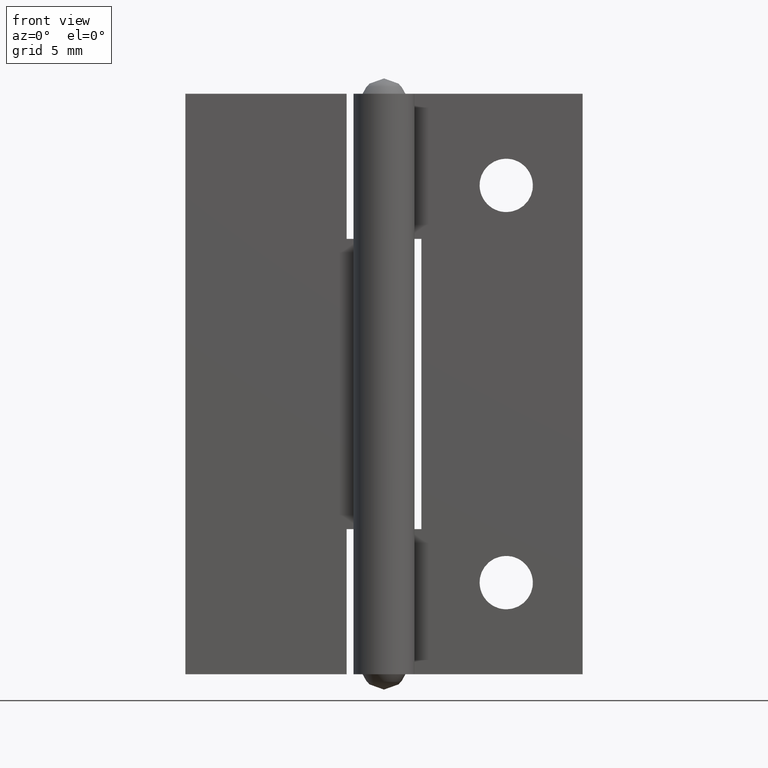
[diagram: clean part render]
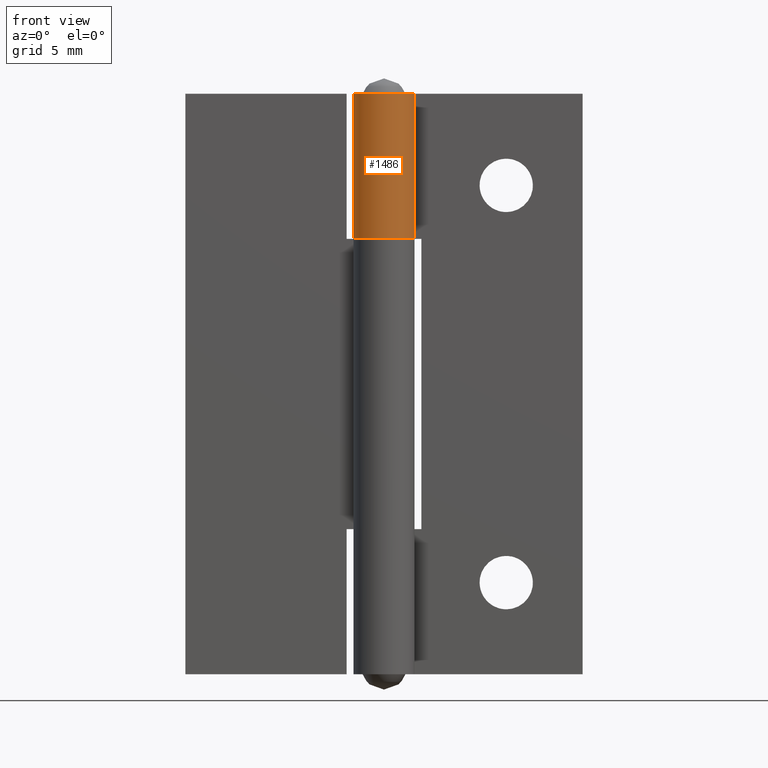
[diagram: same view with one face highlighted and labeled with its STEP entity id]
A machine part, front view. The second image highlights one B-rep face of the part: STEP entity #1486.
In plain terms, the highlighted face is a freeform B-spline surface patch.
Its self-contained STEP definition (entity closure, byte-faithful):
#1039=CARTESIAN_POINT('',(-0.000000034906578,2.0,28.500000000000000));
#1040=VERTEX_POINT('',#1039);
#1078=CARTESIAN_POINT('',(1.636306079486140,1.150001000000000,28.500000000000000));
#1079=VERTEX_POINT('',#1078);
#1085=CARTESIAN_POINT('',(-0.000000034906578,2.0,28.500000000000000));
#1086=CARTESIAN_POINT('',(-0.138662599789043,2.000009071532254,28.500000000000000));
#1087=CARTESIAN_POINT('',(-0.457623820378573,1.966744788136761,28.500000000000028));
#1088=CARTESIAN_POINT('',(-0.866118445695828,1.820755299654439,28.499999999999989));
#1089=CARTESIAN_POINT('',(-1.260712286271368,1.572488074936260,28.499999999999979));
#1090=CARTESIAN_POINT('',(-1.545474919250549,1.293651750988551,28.500000000000060));
#1091=CARTESIAN_POINT('',(-1.790544170826934,0.921842037181034,28.499999999999929));
#1092=CARTESIAN_POINT('',(-1.932979946560860,0.565166024059925,28.500000000000298));
#1093=CARTESIAN_POINT('',(-2.001619589783685,0.181630957281309,28.499999999999091));
#1094=CARTESIAN_POINT('',(-2.003511127313871,-0.159431725649105,28.500000000002320));
#1095=CARTESIAN_POINT('',(-1.947155879620379,-0.495671646900028,28.499999999996529));
#1096=CARTESIAN_POINT('',(-1.840417730498732,-0.804774894624429,28.500000000000540));
#1097=CARTESIAN_POINT('',(-1.662475058039428,-1.135510809175720,28.500000000000139));
#1098=CARTESIAN_POINT('',(-1.430970469922418,-1.415269198162874,28.499999999999901));
#1099=CARTESIAN_POINT('',(-1.108489837890586,-1.679840511352166,28.500000000000028));
#1100=CARTESIAN_POINT('',(-0.745891886063316,-1.875479625690522,28.499999999999989));
#1101=CARTESIAN_POINT('',(-0.334543653907523,-1.985172164224648,28.500000000000011));
#1102=CARTESIAN_POINT('',(0.061259758865082,-2.010167398837257,28.499999999999961));
#1103=CARTESIAN_POINT('',(0.441769884819061,-1.964715102119399,28.500000000000451));
#1104=CARTESIAN_POINT('',(0.805510004894480,-1.843465370229342,28.499999999998469));
#1105=CARTESIAN_POINT('',(1.097141598066139,-1.680722744495974,28.500000000003439));
#1106=CARTESIAN_POINT('',(1.361688231245626,-1.477726647497505,28.499999999998831));
#1107=CARTESIAN_POINT('',(1.599242862038792,-1.222661001553729,28.500000000000799));
#1108=CARTESIAN_POINT('',(1.796510644998546,-0.902499314880212,28.499999999999609));
#1109=CARTESIAN_POINT('',(1.916408596946140,-0.598260482099542,28.500000000000082));
#1110=CARTESIAN_POINT('',(1.995370362687566,-0.252741753666285,28.500000000000011));
#1111=CARTESIAN_POINT('',(2.013261787909481,0.165627838020267,28.500000000000011));
#1112=CARTESIAN_POINT('',(1.909520484724008,0.672562779634810,28.499999999999979));
#1113=CARTESIAN_POINT('',(1.744013222588146,0.996874815963740,28.500000000000011));
#1114=CARTESIAN_POINT('',(1.636306079486140,1.150001000000000,28.500000000000000));
#1115=B_SPLINE_CURVE_WITH_KNOTS('',3,(#1085,#1086,#1087,#1088,#1089,#1090,#1091,#1092,#1093,#1094,#1095,#1096,#1097,#1098,#1099,#1100,#1101,#1102,#1103,#1104,#1105,#1106,#1107,#1108,#1109,#1110,#1111,#1112,#1113,#1114),.UNSPECIFIED.,.F.,.U.,(4,1,1,1,1,1,1,1,1,1,1,1,1,1,1,1,1,1,1,1,1,1,1,1,1,1,1,4),(0.000000210222714,0.415998250467974,0.956837923065237,1.289653514315553,1.809678284180539,2.142491950208932,2.620925288320601,2.953701236985336,3.307326494626858,3.640145148307610,3.972963243569266,4.284982276041667,4.763407927354322,5.054609055803840,5.533017053833843,5.990643790003437,6.323456821509446,6.718676333246000,7.134697244981644,7.467506912515731,7.717121826852859,8.133113595031739,8.507546876857571,8.840356543166630,9.110768107600203,9.568396167602646,10.088420916170680,10.650035476699960),.UNSPECIFIED.);
#1116=EDGE_CURVE('',#1040,#1079,#1115,.T.);
#1220=CARTESIAN_POINT('',(-0.000000034906578,2.0,38.0));
#1221=VERTEX_POINT('',#1220);
#1227=CARTESIAN_POINT('',(1.636306079486140,1.150001000000000,38.0));
#1228=VERTEX_POINT('',#1227);
#1229=CARTESIAN_POINT('',(1.636306079486140,1.150001000000000,38.0));
#1230=CARTESIAN_POINT('',(1.744010285888513,0.996873530012477,37.999999999999851));
#1231=CARTESIAN_POINT('',(1.868118870912471,0.753640011227109,38.000000000000192));
#1232=CARTESIAN_POINT('',(1.969786669465366,0.385317730863842,37.999999999999822));
#1233=CARTESIAN_POINT('',(2.013641439471758,0.033192026548669,38.000000000000057));
#1234=CARTESIAN_POINT('',(1.980567104560594,-0.384505444103531,38.000000000000028));
#1235=CARTESIAN_POINT('',(1.836862001114487,-0.836525070670545,38.000000000000057));
#1236=CARTESIAN_POINT('',(1.602619877034943,-1.225664157940175,37.999999999999908));
#1237=CARTESIAN_POINT('',(1.325804361515979,-1.510725046084966,38.000000000000092));
#1238=CARTESIAN_POINT('',(1.050357593268280,-1.710931005828051,37.999999999999929));
#1239=CARTESIAN_POINT('',(0.753790421221455,-1.864492968712068,38.000000000000391));
#1240=CARTESIAN_POINT('',(0.393874498979968,-1.974159441917315,38.000000000000327));
#1241=CARTESIAN_POINT('',(0.033300525625114,-2.009637233329302,37.999999999999837));
#1242=CARTESIAN_POINT('',(-0.327228785905870,-1.983097080664199,38.000000000000050));
#1243=CARTESIAN_POINT('',(-0.705756908316438,-1.888454434220585,37.999999999999950));
#1244=CARTESIAN_POINT('',(-1.055543263838064,-1.713612870506321,38.000000000000043));
#1245=CARTESIAN_POINT('',(-1.375094125583939,-1.467696477819422,37.999999999999957));
#1246=CARTESIAN_POINT('',(-1.613075772794542,-1.203307034371731,38.000000000000043));
#1247=CARTESIAN_POINT('',(-1.838659882654495,-0.827451558615733,37.999999999999993));
#1248=CARTESIAN_POINT('',(-1.967115071910584,-0.442502620806842,38.000000000000007));
#1249=CARTESIAN_POINT('',(-2.013892316273424,0.007346773082969,37.999999999999993));
#1250=CARTESIAN_POINT('',(-1.976568259162781,0.382576957826380,38.0));
#1251=CARTESIAN_POINT('',(-1.856567728497319,0.774971962381117,38.000000000000043));
#1252=CARTESIAN_POINT('',(-1.665121996649279,1.139248311035116,38.000000000000007));
#1253=CARTESIAN_POINT('',(-1.377414805226810,1.472088630809970,37.999999999999972));
#1254=CARTESIAN_POINT('',(-1.014042689939117,1.742422158920420,38.000000000000007));
#1255=CARTESIAN_POINT('',(-0.561571860214918,1.945160633847681,38.000000000000007));
#1256=CARTESIAN_POINT('',(-0.201078424475907,2.000093897372937,38.0));
#1257=CARTESIAN_POINT('',(-0.000000034906578,2.0,38.0));
#1258=B_SPLINE_CURVE_WITH_KNOTS('',3,(#1229,#1230,#1231,#1232,#1233,#1234,#1235,#1236,#1237,#1238,#1239,#1240,#1241,#1242,#1243,#1244,#1245,#1246,#1247,#1248,#1249,#1250,#1251,#1252,#1253,#1254,#1255,#1256,#1257),.UNSPECIFIED.,.F.,.U.,(4,1,1,1,1,1,1,1,1,1,1,1,1,1,1,1,1,1,1,1,1,1,1,1,1,1,4),(0.000000210223451,0.561608016460838,0.811228940110574,1.144046337282139,1.622470234139092,2.059297143157179,2.558512482947108,2.974521855135663,3.244917356962839,3.577738229994988,3.972963243569607,4.368183573306946,4.659398887436923,5.054609055804161,5.533017053834152,5.824221892411053,6.261048105387788,6.593868872801720,7.134697244981750,7.467506912515768,7.945942504401968,8.257931962618660,8.694748151425149,9.173174019361724,9.568396167602703,10.046823932830931,10.650035476699941),.UNSPECIFIED.);
#1259=EDGE_CURVE('',#1228,#1221,#1258,.T.);
#1413=CARTESIAN_POINT('',(1.636306079486140,1.150001000000000,38.0));
#1414=CARTESIAN_POINT('',(1.636306079486140,1.150001000000000,28.500000000000000));
#1415=QUASI_UNIFORM_CURVE('',1,(#1413,#1414),.UNSPECIFIED.,.F.,.U.);
#1416=EDGE_CURVE('',#1228,#1079,#1415,.T.);
#1454=CARTESIAN_POINT('',(0.017453036090169,1.999923846128342,38.237499999999997));
#1455=CARTESIAN_POINT('',(0.017453036090169,1.999923846128342,28.256562499999990));
#1456=CARTESIAN_POINT('',(-2.496795823209837,2.021865363516517,38.237500000000004));
#1457=CARTESIAN_POINT('',(-2.496795823209837,2.021865363516517,28.256562500000001));
#1458=CARTESIAN_POINT('',(-1.952592049146443,-0.432879227876207,38.237499999999997));
#1459=CARTESIAN_POINT('',(-1.952592049146443,-0.432879227876207,28.256562499999990));
#1460=CARTESIAN_POINT('',(-1.408388275083049,-2.887623819268929,38.237500000000004));
#1461=CARTESIAN_POINT('',(-1.408388275083049,-2.887623819268929,28.256562500000001));
#1462=CARTESIAN_POINT('',(0.861022158710014,-1.805170568699720,38.237499999999997));
#1463=CARTESIAN_POINT('',(0.861022158710014,-1.805170568699720,28.256562499999990));
#1464=CARTESIAN_POINT('',(3.130432592503076,-0.722717318130509,38.237500000000004));
#1465=CARTESIAN_POINT('',(3.130432592503076,-0.722717318130509,28.256562500000001));
#1466=CARTESIAN_POINT('',(1.565216278798249,1.245029273275239,38.237499999999997));
#1467=CARTESIAN_POINT('',(1.565216278798249,1.245029273275239,28.256562499999990));
#1475=(BOUNDED_SURFACE()B_SPLINE_SURFACE(1,2,((#1454,#1456,#1458,#1460,#1462,#1464,#1466),(#1455,#1457,#1459,#1461,#1463,#1465,#1467)),.UNSPECIFIED.,.F.,.F.,.U.)B_SPLINE_SURFACE_WITH_KNOTS((2,2),(3,2,2,3),(0.0,9.980937500000010),(0.0,3.858741926540561,7.717483853081123,11.576225779621680),.UNSPECIFIED.)GEOMETRIC_REPRESENTATION_ITEM()RATIONAL_B_SPLINE_SURFACE(((1.0,0.622514636637620,1.0,0.622514636637620,1.0,0.622514636637620,1.0),(1.0,0.622514636637620,1.0,0.622514636637620,1.0,0.622514636637620,1.0)))REPRESENTATION_ITEM('')SURFACE());
#1476=CARTESIAN_POINT('',(-0.000000034906578,2.0,38.0));
#1477=CARTESIAN_POINT('',(-0.000000034906578,2.0,28.500000000000000));
#1478=QUASI_UNIFORM_CURVE('',1,(#1476,#1477),.UNSPECIFIED.,.F.,.U.);
#1479=EDGE_CURVE('',#1221,#1040,#1478,.T.);
#1480=ORIENTED_EDGE('',*,*,#1479,.T.);
#1481=ORIENTED_EDGE('',*,*,#1116,.T.);
#1482=ORIENTED_EDGE('',*,*,#1416,.F.);
#1483=ORIENTED_EDGE('',*,*,#1259,.T.);
#1484=EDGE_LOOP('',(#1480,#1481,#1482,#1483));
#1485=FACE_OUTER_BOUND('',#1484,.T.);
#1486=ADVANCED_FACE('',(#1485),#1475,.T.);